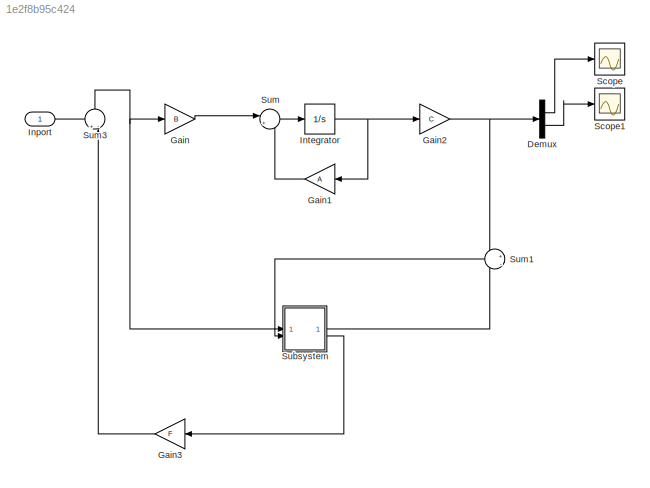
MODEL slx_1e2f8b95c424
KIND model
CONFIG AbsTol = auto
CONFIG EnableMultiTasking = off
CONFIG FixedStep = auto
CONFIG MaxStep = auto
CONFIG MinStep = auto
CONFIG RelTol = 1e-3
CONFIG SampleTimeConstraint = Unconstrained
CONFIG SolverName = VariableStepAuto
CONFIG StartTime = 0.0
CONFIG StopTime = 10.0
BLOCK [Demux] Demux
  Outputs = 2
BLOCK [Gain] Gain
  Gain = B
  Multiplication = Matrix(K*u)
BLOCK [Gain] Gain1
  Gain = A
  Multiplication = Matrix(K*u)
BLOCK [Gain] Gain2
  Gain = C
  Multiplication = Matrix(K*u)
BLOCK [Gain] Gain3
  Gain = F
  Multiplication = Matrix(K*u)
BLOCK [Inport] Inport
BLOCK [Integrator] Integrator
BLOCK [Scope] Scope
  Floating = off
  NumInputPorts = 1
  ScopeSpecificationString = Simulink.scopes.TimeScopeBlockCfg('CurrentConfiguration', extmgr.ConfigurationSet(extmgr.Configuration('Core','General UI',true),extmgr.Configuration('Core','Source UI',true),extmgr.Configuration('Sources','WiredSimulink',true),extmgr.Configuration('Visuals','Time Domain',true,'SerializedDisplays',{struct('MinYLimReal','-0.00469','MaxYLimReal','0.0422','YLabelReal','','MinYLimMag','0.00000','MaxYL...<+1365ch>
BLOCK [Scope] Scope1
  Floating = off
  NumInputPorts = 1
  ScopeSpecificationString = Simulink.scopes.TimeScopeBlockCfg('CurrentConfiguration', extmgr.ConfigurationSet(extmgr.Configuration('Core','General UI',true),extmgr.Configuration('Core','Source UI',true),extmgr.Configuration('Sources','WiredSimulink',true,'DataLoggingVariableName','ScopeData1'),extmgr.Configuration('Visuals','Time Domain',true,'SerializedDisplays',{struct('MinYLimReal','-0.00432','MaxYLimReal','0.03888','YLab...<+1408ch>
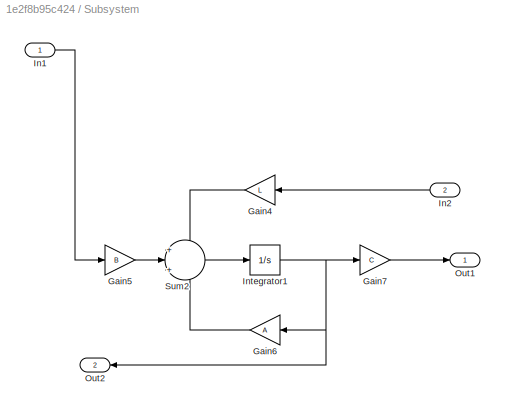
BLOCK [SubSystem] Subsystem
BLOCK [Gain] Subsystem/Gain4
  Gain = L
  Multiplication = Matrix(K*u)
  NameLocation = top
BLOCK [Gain] Subsystem/Gain5
  Gain = B
  Multiplication = Matrix(K*u)
BLOCK [Gain] Subsystem/Gain6
  Gain = A
  Multiplication = Matrix(K*u)
BLOCK [Gain] Subsystem/Gain7
  Gain = C
  Multiplication = Matrix(K*u)
BLOCK [Inport] Subsystem/In1
BLOCK [Inport] Subsystem/In2
  Port = 2
BLOCK [Integrator] Subsystem/Integrator1
BLOCK [Outport] Subsystem/Out1
BLOCK [Outport] Subsystem/Out2
  Port = 2
BLOCK [Sum] Subsystem/Sum2
  Inputs = +|+|+
BLOCK [Sum] Sum
  Inputs = |++
BLOCK [Sum] Sum1
  Inputs = +|-
  NameLocation = top
BLOCK [Sum] Sum3
  Inputs = +-|
  NameLocation = right
LINE Demux:1 -> Scope:1
LINE Demux:2 -> Scope1:1
LINE Gain1:1 -> Sum:2
NET Gain2:1 -> Demux:1, Sum1:1
LINE Gain3:1 -> Sum3:2
LINE Gain:1 -> Sum:1
LINE Inport:1 -> Sum3:1
NET Integrator:1 -> Gain1:1, Gain2:1
LINE Subsystem/Gain4:1 -> Subsystem/Sum2:1
LINE Subsystem/Gain5:1 -> Subsystem/Sum2:2
LINE Subsystem/Gain6:1 -> Subsystem/Sum2:3
LINE Subsystem/Gain7:1 -> Subsystem/Out1:1
LINE Subsystem/In1:1 -> Subsystem/Gain5:1
LINE Subsystem/In2:1 -> Subsystem/Gain4:1
NET Subsystem/Integrator1:1 -> Subsystem/Gain6:1, Subsystem/Gain7:1, Subsystem/Out2:1
LINE Subsystem/Sum2:1 -> Subsystem/Integrator1:1
LINE Subsystem:1 -> Sum1:2
LINE Subsystem:2 -> Gain3:1
LINE Sum1:1 -> Subsystem:2
NET Sum3:1 -> Gain:1, Subsystem:1
LINE Sum:1 -> Integrator:1
note: NET lines group one-source signal fan-out (src -> all destinations, sorted); 1:1 wires keep LINE
